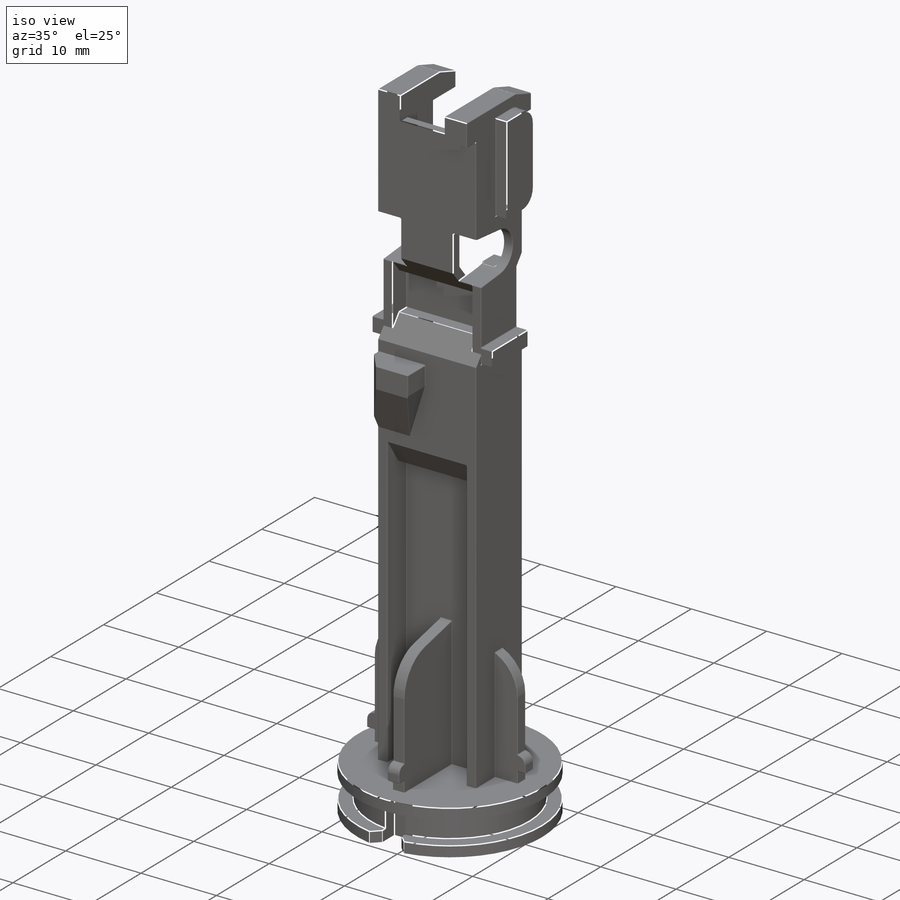
[diagram: iso view]
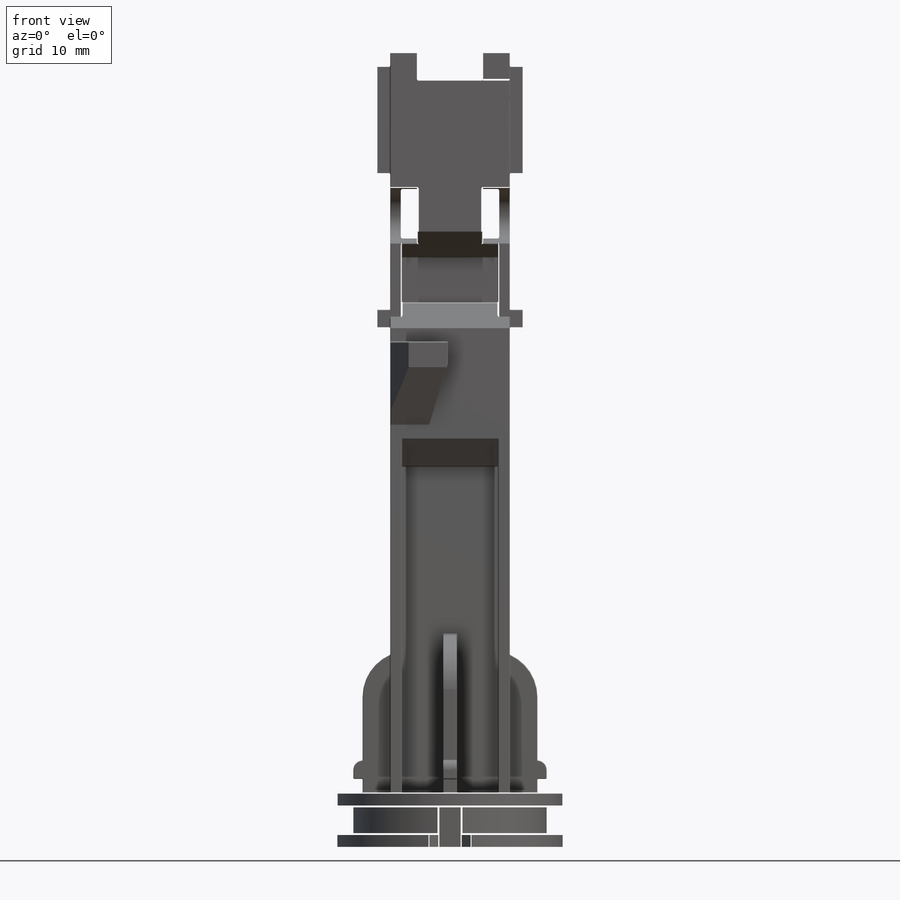
[diagram: front view]
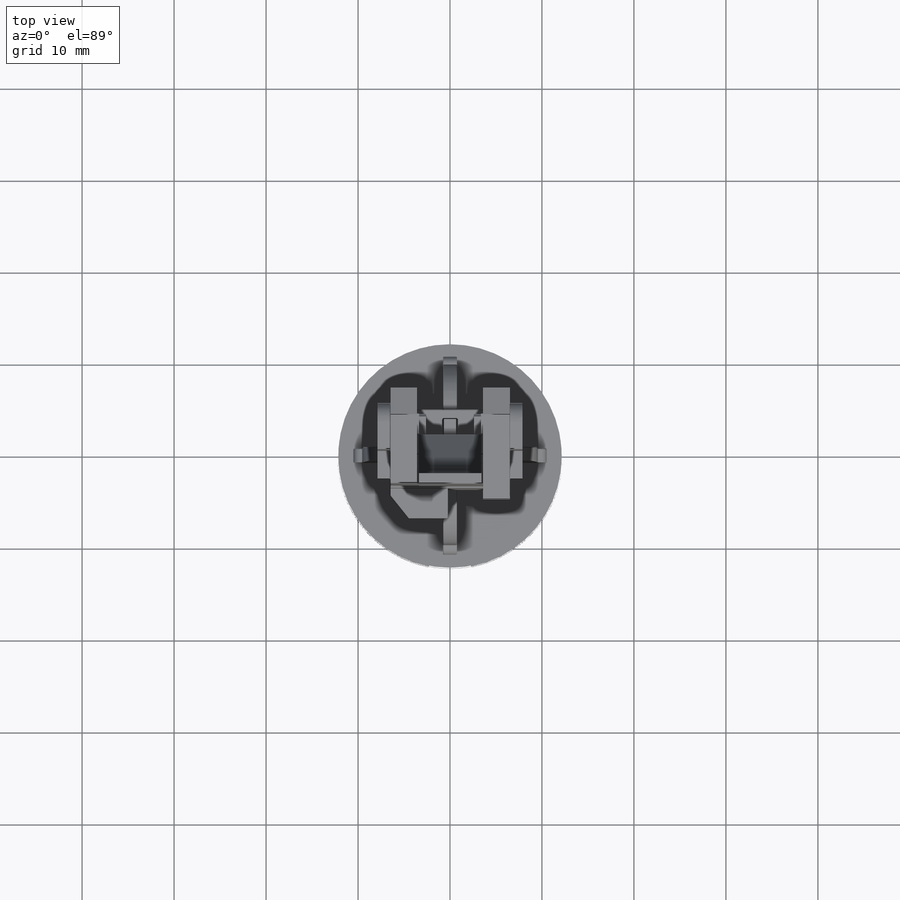
[diagram: top view]
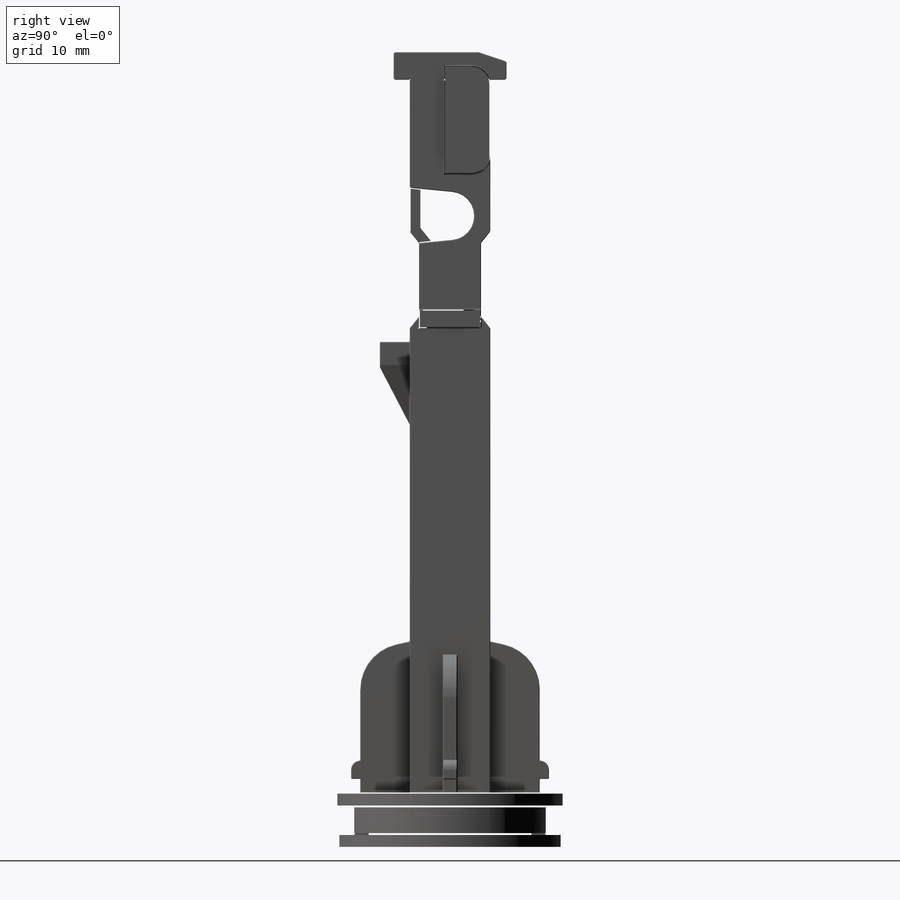
[diagram: right view]
SOLIDWORKS PART (.sldprt)
format: sldprt  version: not decoded by parser v0  size: 3,551,744 bytes
history: native  units: mm
features: sketch x35, extrude x19, fillet x18, cut_extrude x16, chamfer x3, material x1 (+11 scaffold rows collapsed)
feature tree (103):
  scaffold x11  (default folders/planes/origin — collapsed)
  material  "Material <not specified>"
  sketch  "Sketch2"  dims[D1=24.5mm]
  extrude  "Boss-Extrude1"  Depth=1.5mm
  sketch  "Sketch3"  dims[D1=21.0mm]
  extrude  "Boss-Extrude2"  Depth=3mm
  sketch  "Sketch4"  dims[c1.D1=2.5mm c1.D2=2.5mm c1.D3=1.25mm c1.D4=1.25mm c1.D5=2.25mm c1.D6=0.0mm c1.D7=2.25mm c1.D8=0.0mm c1.D9=8.75mm c1.D10=17.5mm c1.D11=~1.293537mm c2.D11=45.0deg c2.D12=2.5mm c3.D12=45.0deg c3.D13=~1.293537mm c4.D13=45.0deg c4.D14=~2.299626mm c5.D14=45.0deg]
  cut_extrude  "Cut-Extrude1"  Depth=4.5mm
  sketch  "Sketch5"  dims[D1=24.5mm]
  extrude  "Boss-Extrude3"  Depth=1.5mm
  sketch  "Sketch6"  dims[c1.D1=~4.472459mm c1.D2=~12.960338mm c2.D1=8.75mm c2.D2=4.375mm c2.D3=13.0mm c2.D4=6.5mm]
  extrude  "Boss-Extrude4"  Depth=80.5mm
  sketch  "Sketch7"  dims[c1.D1=~30.690278mm c1.D2=~8.874297mm c2.D1=1.25mm c2.D2=1.25mm c2.D3=0.0mm c2.D4=35.5mm]
  cut_extrude  "Cut-Extrude2"  Depth=3.625mm
  sketch  "Sketch8"  dims[c1.D1=~31.465779mm c1.D2=~7.491852mm c2.D1=0.0mm c2.D2=1.25mm c2.D3=1.25mm c2.D4=35.5mm]
  cut_extrude  "Cut-Extrude3"  Depth=3.625mm
  chamfer  "Chamfer1"  Distance=3mm
  sketch  "Sketch10"  dims[c1.D1=1.0mm c1.D2=1.0mm c1.D3=10.5mm c1.D4=10.5mm c1.D5=8.0mm c1.D6=8.0mm c1.D7=1.25mm c1.D8=1.25mm c1.D9=50.5mm c1.D10=0.0mm c2.D7=~1.600781mm]
  cut_extrude  "Cut-Extrude5"  Depth=18.625mm
  sketch  "Sketch9"  dims[c1.D1=~4.150758mm c1.D2=~8.042094mm c2.D1=1.25mm c2.D2=1.25mm c2.D3=5.0mm c2.D4=1.5mm]
  cut_extrude  "Cut-Extrude6"  Depth=3.625mm
  sketch  "Sketch11"  dims[c1.D1=1.5mm c1.D2=1.5mm c1.D3=~1.658294mm c2.D1=0.0mm c2.D2=0.0mm c2.D3=~5.168678mm]
  cut_extrude  "Cut-Extrude8"  Depth=1.25mm
  sketch  "Sketch12"  dims[c1.D1=~16.330443mm c1.D2=~3.354667mm c2.D1=~17.252518mm c2.D2=~2.89363mm c3.D1=15.0mm c3.D2=3.0mm c3.D3=3.0mm c3.D4=15.0mm]
  extrude  "Boss-Extrude5"  Depth=1.5mm
  sketch  "Sketch13"  dims[c1.D1=~21.286592mm c1.D2=~3.227259mm c2.D1=1.5mm c2.D2=0.75mm c2.D3=17.25mm]
  extrude  "Boss-Extrude6"  Depth=9mm
  sketch  "Sketch14"  dims[c1.D1=~16.79148mm c1.D2=~4.495111mm c2.D1=17.25mm c2.D2=1.5mm c2.D3=0.75mm]
  extrude  "Boss-Extrude7"  Depth=9mm
  sketch  "Sketch15"  dims[c1.D1=~10.719112mm c1.D2=~8.183408mm c2.D1=1.25mm c2.D2=1.25mm c2.D3=1.25mm c2.D4=15.75mm]
  cut_extrude  "Cut-Extrude9"  Depth=7mm
  sketch  "Sketch16"  dims[c1.D1=~5.506766mm c1.D2=~3.065128mm c2.D1=1.5mm c2.D2=5.75mm c2.D3=4.0mm]
  extrude  "Boss-Extrude8"  Depth=6mm
  sketch  "Sketch17"  dims[D1=1.5mm D2=9.0mm D3=4.25mm D4=6.25mm D5=2.5mm]
  extrude  "Boss-Extrude9"  Depth=3.25mm
  chamfer  "Chamfer4"  Distance=2.5mm
  chamfer  "Chamfer5"  Distance=3.25mm
  sketch  "Sketch18"  dims[c1.D2=~2.078014mm c1.D1=0.0mm c2.D2=6.0mm c2.D3=7.0mm c2.D4=0.25mm c2.D5=~1.600781mm]
  cut_extrude  "Cut-Extrude10"  Depth=3mm
  sketch  "Sketch19"  dims[c1.D2=~2.075742mm c1.D1=0.0mm c2.D2=7.0mm c2.D3=6.0mm c2.D4=0.25mm c2.D5=~0.068658mm]
  cut_extrude  "Cut-Extrude11"  Depth=3mm
  sketch  "Sketch20"  dims[c1.D1=~3.373193mm c1.D2=~5.887672mm c2.D1=3.0mm c2.D2=3.0mm c2.D3=3.0mm]
  cut_extrude  "Cut-Extrude12"  Depth=12mm
  sketch  "Sketch21"  dims[c1.D1=~0.530082mm c1.D2=~1.845095mm c2.D1=3.0mm c2.D2=3.0mm]
  extrude  "Boss-Extrude10"  Depth=1.75mm
  sketch  "Sketch22"  dims[c1.D1=3.0mm c1.D2=3.0mm c2.D1=~0.472308mm c2.D2=~4.290795mm c3.D1=3.0mm c3.D2=3.0mm]
  extrude  "Boss-Extrude11"  Depth=1.75mm
  sketch  "Sketch23"  dims[D1=1.25mm D2=1.25mm D3=5.0mm D4=2.75mm D5=6.5mm D6=2.0mm D7=0.5mm]
  cut_extrude  "Cut-Extrude13"  Depth=3mm
  sketch  "Sketch24"  dims[c1.D1=~5.808597mm c1.D2=~10.33991mm c2.D1=1.25mm c2.D2=1.25mm c2.D3=0.0mm c2.D4=6.0mm]
  cut_extrude  "Cut-Extrude14"  Depth=7.5mm
  sketch  "Sketch26"  dims[D1=1.25mm]
  extrude  "Boss-Extrude12"  [1 undecoded]
  sketch  "Sketch27"  dims[D1=0.0mm]
  cut_extrude  "Cut-Extrude15"  [1 undecoded]
  sketch  "Sketch28"  dims[c1.D1=~0.620062mm c1.D2=1.75mm c2.D1=~0.620062mm c2.D2=1.75mm]
  extrude  "Boss-Extrude13"  Depth=7.5mm
  sketch  "Sketch29"  dims[D1=1.25mm D2=1.25mm]
  cut_extrude  "Cut-Extrude16"  [1 undecoded]
  sketch  "Sketch30"  dims[c1.D1=~1.52769mm c1.D2=~1.489516mm c2.D1=~1.52769mm c2.D2=~2.462517mm c3.D1=1.5mm c3.D2=2.0mm c3.D3=2.0mm c3.D4=1.5mm]
  extrude  "Boss-Extrude14"  Depth=1mm
  sketch  "Sketch31"  dims[c1.D1=~7.287497mm c1.D2=~1.375114mm c2.D1=~7.94431mm c2.D2=~1.106909mm c3.D1=1.5mm c3.D2=1.5mm c3.D3=11.75mm c3.D4=11.75mm c3.D5=1.5mm c3.D6=1.5mm]
  extrude  "Boss-Extrude15"  Depth=5mm
  sketch  "Sketch32"  dims[c1.D1=~1.695731mm c1.D2=1.5mm c2.D1=1.5mm c2.D2=2.0mm]
  extrude  "Boss-Extrude16"  Depth=1mm
  sketch  "Sketch33"  dims[c1.D1=~1.765263mm c1.D2=1.5mm c2.D1=1.5mm c2.D2=2.0mm]
  extrude  "Boss-Extrude17"  Depth=1mm
  sketch  "Sketch34"  dims[c1.D1=~1.711641mm c1.D2=1.5mm c2.D1=1.5mm c2.D2=2.0mm]
  extrude  "Boss-Extrude18"  Depth=1mm
  sketch  "Sketch35"  dims[c1.D1=~2.391672mm c1.D2=1.5mm c2.D1=1.5mm c2.D2=2.0mm]
  extrude  "Boss-Extrude19"  Depth=1mm
  fillet  "Fillet1"  Radius=5mm
  sketch  "Sketch36"  dims[D1=2.0mm D2=2.0mm]
  cut_extrude  "Cut-Extrude17"  Depth=1.5mm
  fillet  "Fillet2"  Radius=5mm
  fillet  "Fillet3"  Radius=1mm
  fillet  "Fillet4"  Radius=2mm
  sketch  "Sketch37"  dims[D1=1.0mm D2=3.0mm]
  cut_extrude  "Cut-Extrude18"  Depth=19.5mm
  fillet  "Fillet5"  Radius=0.1mm
  fillet  "Fillet6"  Radius=0.1mm
  fillet  "Fillet7"  Radius=0.1mm
  fillet  "Fillet8"  Radius=0.1mm
  fillet  "Fillet9"  Radius=0.1mm
  fillet  "Fillet10"  Radius=0.1mm
  fillet  "Fillet12"  Radius=0.1mm
  fillet  "Fillet13"  Radius=0.1mm
  fillet  "Fillet14"  Radius=0.1mm
  fillet  "Fillet15"  Radius=0.1mm
  fillet  "Fillet16"  Radius=0.1mm
  fillet  "Fillet17"  Radius=0.05mm
  fillet  "Fillet18"  Radius=0.1mm
  fillet  "Fillet19"  Radius=0.05mm
decode coverage: 88 of 91 modeling features carry decoded parameters
note: ~ marks probable driven/reference dimensions
note: 3 parameter values undecoded
summary: no parameter record found for 3 features
note: suppression state not decoded; provenance and decode notes live in map.json
